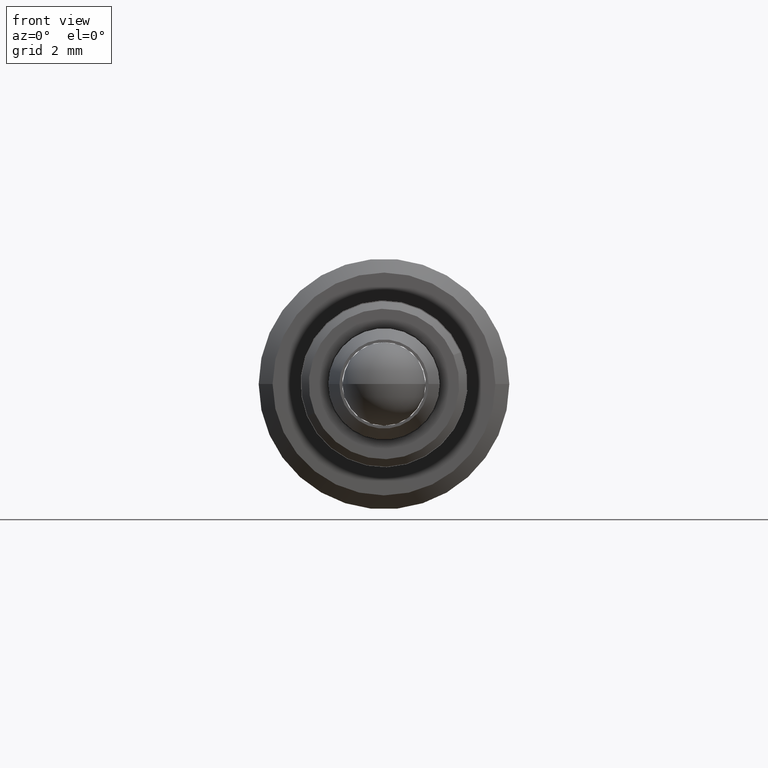
[diagram: clean part render]
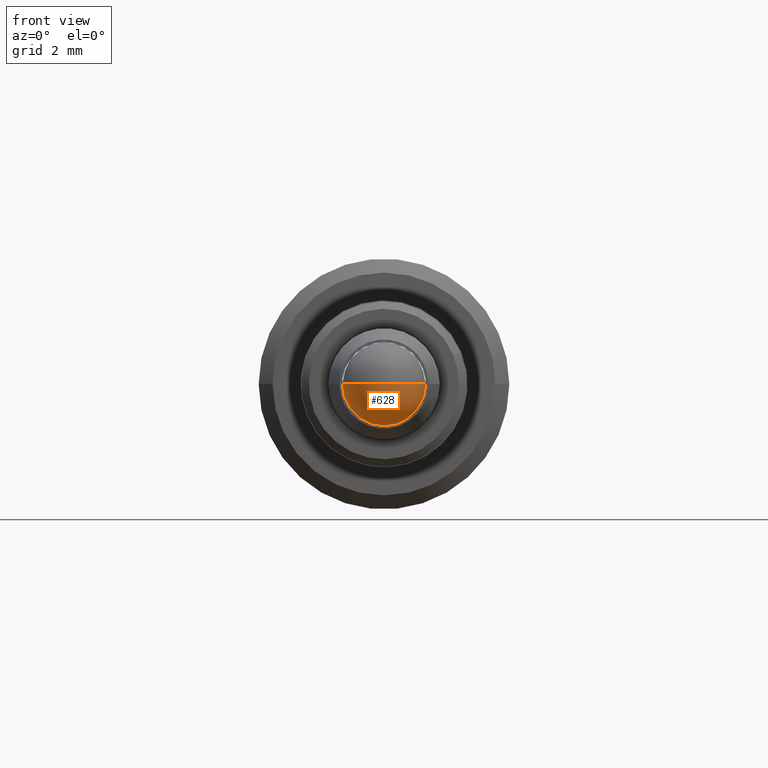
[diagram: same view with one face highlighted and labeled with its STEP entity id]
A machine part, front view. The second image highlights one B-rep face of the part: STEP entity #628.
In plain terms, the highlighted spherical surface has radius 1.5 mm.
Its self-contained STEP definition (entity closure, byte-faithful):
#13 = EDGE_CURVE ( 'NONE', #688, #122, #465, .T. ) ;
#36 = DIRECTION ( 'NONE',  ( 0.0000000000000000000, 1.000000000000000000, 0.0000000000000000000 ) ) ;
#85 = AXIS2_PLACEMENT_3D ( 'NONE', #1005, #400, #922 ) ;
#86 = AXIS2_PLACEMENT_3D ( 'NONE', #357, #705, #963 ) ;
#98 = EDGE_LOOP ( 'NONE', ( #675, #388 ) ) ;
#122 = VERTEX_POINT ( 'NONE', #258 ) ;
#258 = CARTESIAN_POINT ( 'NONE',  ( 7.386313430823038900, 6.131430702470391100, 17.11623035873974200 ) ) ;
#267 = FACE_OUTER_BOUND ( 'NONE', #98, .T. ) ;
#357 = CARTESIAN_POINT ( 'NONE',  ( 8.886313430823038900, 6.131430702470391100, 17.11623035873974200 ) ) ;
#388 = ORIENTED_EDGE ( 'NONE', *, *, #846, .T. ) ;
#400 = DIRECTION ( 'NONE',  ( -0.0000000000000000000, 0.0000000000000000000, 1.000000000000000000 ) ) ;
#414 = SPHERICAL_SURFACE ( 'NONE', #822, 1.500000000000000000 ) ;
#423 = CIRCLE ( 'NONE', #86, 1.499999999999999600 ) ;
#465 = CIRCLE ( 'NONE', #85, 1.499999999999999600 ) ;
#628 = ADVANCED_FACE ( 'NONE', ( #267 ), #414, .T. ) ;
#647 = CARTESIAN_POINT ( 'NONE',  ( 8.886313430823038900, 6.131430702470391100, 17.11623035873974200 ) ) ;
#675 = ORIENTED_EDGE ( 'NONE', *, *, #13, .F. ) ;
#688 = VERTEX_POINT ( 'NONE', #902 ) ;
#705 = DIRECTION ( 'NONE',  ( 0.0000000000000000000, 1.224646799147353200E-016, -1.000000000000000000 ) ) ;
#822 = AXIS2_PLACEMENT_3D ( 'NONE', #647, #991, #36 ) ;
#846 = EDGE_CURVE ( 'NONE', #688, #122, #423, .T. ) ;
#902 = CARTESIAN_POINT ( 'NONE',  ( 10.38631343082303900, 6.131430702470391100, 17.11623035873974200 ) ) ;
#922 = DIRECTION ( 'NONE',  ( 1.000000000000000000, 0.0000000000000000000, 0.0000000000000000000 ) ) ;
#963 = DIRECTION ( 'NONE',  ( 0.0000000000000000000, 1.000000000000000000, 0.0000000000000000000 ) ) ;
#991 = DIRECTION ( 'NONE',  ( -0.0000000000000000000, 0.0000000000000000000, -1.000000000000000000 ) ) ;
#1005 = CARTESIAN_POINT ( 'NONE',  ( 8.886313430823038900, 6.131430702470391100, 17.11623035873974200 ) ) ;